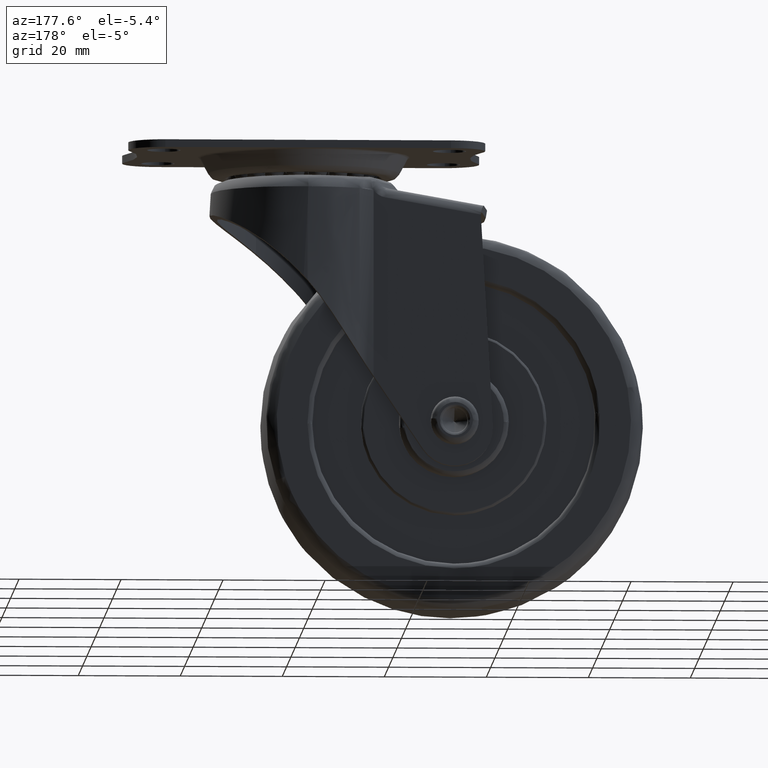
[diagram: clean part render]
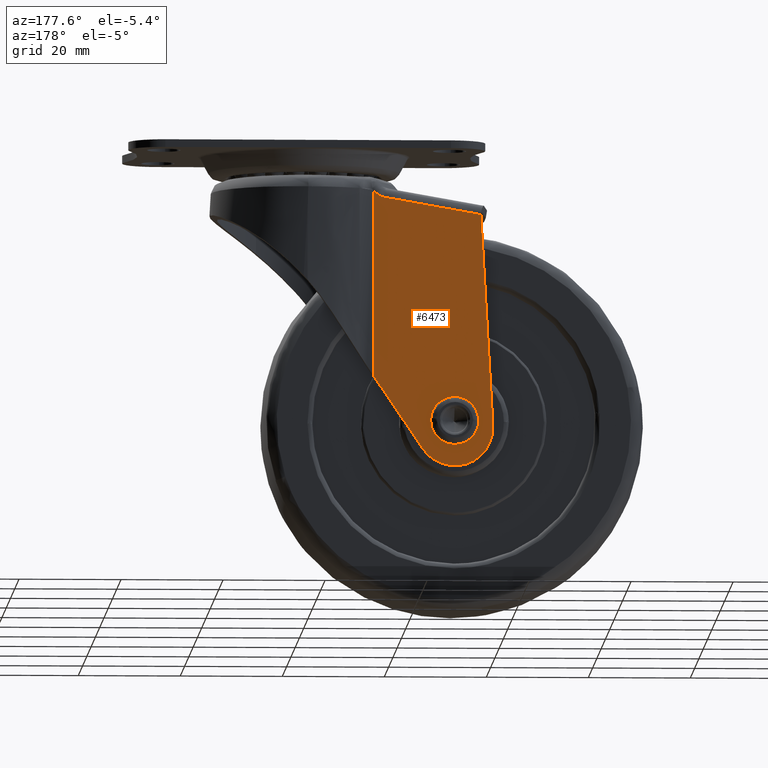
[diagram: same view with one face highlighted and labeled with its STEP entity id]
A machine part, auxiliary view. The second image highlights one B-rep face of the part: STEP entity #6473.
In plain terms, the highlighted face is a freeform B-spline surface patch.
Its self-contained STEP definition (entity closure, byte-faithful):
#774=CARTESIAN_POINT('',(-32.243938094868049,14.500014999999980,-52.801588246462401));
#775=VERTEX_POINT('',#774);
#781=CARTESIAN_POINT('',(-29.0,14.500014999999980,-49.749996000000003));
#782=VERTEX_POINT('',#781);
#783=CARTESIAN_POINT('',(-29.0,14.500014999999980,-49.749996000000003));
#784=CARTESIAN_POINT('',(-32.057294717350388,14.500014999999976,-49.749995999999996));
#785=CARTESIAN_POINT('',(-32.243938094868049,14.500014999999982,-52.801588246462408));
#793=(BOUNDED_CURVE()B_SPLINE_CURVE(2,(#783,#784,#785),.UNSPECIFIED.,.F.,.U.)B_SPLINE_CURVE_WITH_KNOTS((3,3),(0.500000000000000,0.739332962236722),.UNSPECIFIED.)CURVE()GEOMETRIC_REPRESENTATION_ITEM()RATIONAL_B_SPLINE_CURVE((1.0,0.719603993289312,0.976072041661959))REPRESENTATION_ITEM(''));
#794=EDGE_CURVE('',#782,#775,#793,.T.);
#796=CARTESIAN_POINT('',(-25.772719039358218,14.500014999999980,-53.383607262972063));
#797=VERTEX_POINT('',#796);
#798=CARTESIAN_POINT('',(-25.772719039358211,14.500014999999985,-53.383607262972056));
#799=CARTESIAN_POINT('',(-25.750000000000004,14.500014999999983,-53.192474389209877));
#800=CARTESIAN_POINT('',(-25.750000000000000,14.500014999999980,-52.999996000000003));
#801=CARTESIAN_POINT('',(-25.750000000000004,14.500014999999978,-49.749996000000003));
#802=CARTESIAN_POINT('',(-29.0,14.500014999999980,-49.749996000000003));
#810=(BOUNDED_CURVE()B_SPLINE_CURVE(2,(#798,#799,#800,#801,#802),.UNSPECIFIED.,.F.,.U.)B_SPLINE_CURVE_WITH_KNOTS((3,2,3),(0.229562473480287,0.250000000000000,0.500000000000000),.UNSPECIFIED.)CURVE()GEOMETRIC_REPRESENTATION_ITEM()RATIONAL_B_SPLINE_CURVE((0.956026754118584,0.976055948292224,1.0,0.707106781186547,1.0))REPRESENTATION_ITEM(''));
#811=EDGE_CURVE('',#797,#782,#810,.T.);
#855=CARTESIAN_POINT('',(-29.0,14.500014999999980,-56.249996000000003));
#856=VERTEX_POINT('',#855);
#857=CARTESIAN_POINT('',(-29.0,14.500014999999980,-56.249996000000003));
#858=CARTESIAN_POINT('',(-26.113432791266213,14.500014999999976,-56.249996000000003));
#859=CARTESIAN_POINT('',(-25.772719039358211,14.500014999999980,-53.383607262972063));
#867=(BOUNDED_CURVE()B_SPLINE_CURVE(2,(#857,#858,#859),.UNSPECIFIED.,.F.,.U.)B_SPLINE_CURVE_WITH_KNOTS((3,3),(0.0,0.229562473480287),.UNSPECIFIED.)CURVE()GEOMETRIC_REPRESENTATION_ITEM()RATIONAL_B_SPLINE_CURVE((1.0,0.731050832894324,0.956026754118584))REPRESENTATION_ITEM(''));
#868=EDGE_CURVE('',#856,#797,#867,.T.);
#870=CARTESIAN_POINT('',(-32.243938094868042,14.500014999999982,-52.801588246462394));
#871=CARTESIAN_POINT('',(-32.250000000000007,14.500014999999980,-52.900699519230145));
#872=CARTESIAN_POINT('',(-32.250000000000000,14.500014999999980,-52.999996000000003));
#873=CARTESIAN_POINT('',(-32.250000000000007,14.500014999999978,-56.249996000000003));
#874=CARTESIAN_POINT('',(-29.0,14.500014999999980,-56.249996000000003));
#882=(BOUNDED_CURVE()B_SPLINE_CURVE(2,(#870,#871,#872,#873,#874),.UNSPECIFIED.,.F.,.U.)B_SPLINE_CURVE_WITH_KNOTS((3,2,3),(0.739332962236722,0.750000000000000,1.0),.UNSPECIFIED.)CURVE()GEOMETRIC_REPRESENTATION_ITEM()RATIONAL_B_SPLINE_CURVE((0.976072041661957,0.987502787897235,1.0,0.707106781186547,1.0))REPRESENTATION_ITEM(''));
#883=EDGE_CURVE('',#775,#856,#882,.T.);
#3153=CARTESIAN_POINT('',(-15.430853381410500,14.500014999999960,-9.154299151715140));
#3154=VERTEX_POINT('',#3153);
#3183=CARTESIAN_POINT('',(-13.424236345553700,14.500014999999960,-8.099379601999029));
#3184=VERTEX_POINT('',#3183);
#3198=CARTESIAN_POINT('',(-15.430853381410500,14.500014999999960,-9.154299151715140));
#3199=CARTESIAN_POINT('',(-15.240095657702740,14.500014999999960,-9.120663435797777));
#3200=CARTESIAN_POINT('',(-15.054419396493479,14.500014999999960,-9.072819477176346));
#3201=CARTESIAN_POINT('',(-14.692659832718929,14.500014999999960,-8.950308753565594));
#3202=CARTESIAN_POINT('',(-14.516575271179381,14.500014999999960,-8.875645508785615));
#3203=CARTESIAN_POINT('',(-14.260009214604180,14.500014999999960,-8.742509980088491));
#3204=CARTESIAN_POINT('',(-14.175574023084200,14.500014999999960,-8.694436260273777));
#3205=CARTESIAN_POINT('',(-14.012084351960731,14.500014999999960,-8.592487141603245));
#3206=CARTESIAN_POINT('',(-13.932702410238081,14.500014999999960,-8.538463438082134));
#3207=CARTESIAN_POINT('',(-13.701819226378721,14.500014999999960,-8.367020412389342));
#3208=CARTESIAN_POINT('',(-13.557470925140960,14.500014999999960,-8.240370735559774));
#3209=CARTESIAN_POINT('',(-13.424236345553700,14.500014999999960,-8.099379601999029));
#3210=B_SPLINE_CURVE_WITH_KNOTS('',3,(#3198,#3199,#3200,#3201,#3202,#3203,#3204,#3205,#3206,#3207,#3208,#3209),.UNSPECIFIED.,.F.,.U.,(4,2,2,2,2,4),(0.0,0.249999999999999,0.499999999999998,0.624999999999998,0.749999999999998,1.0),.UNSPECIFIED.);
#3211=EDGE_CURVE('',#3154,#3184,#3210,.T.);
#3238=CARTESIAN_POINT('',(-13.114845407450700,14.500014999999960,-7.772795096158620));
#3239=VERTEX_POINT('',#3238);
#3253=CARTESIAN_POINT('',(-13.424236345553700,14.500014999999960,-8.099379601999029));
#3254=CARTESIAN_POINT('',(-13.321242122598839,14.500014999999960,-7.990389336186687));
#3255=CARTESIAN_POINT('',(-13.218113573278680,14.500014999999960,-7.881525836662141));
#3256=CARTESIAN_POINT('',(-13.114845407450700,14.500014999999960,-7.772795096158620));
#3257=B_SPLINE_CURVE_WITH_KNOTS('',3,(#3253,#3254,#3255,#3256),.UNSPECIFIED.,.F.,.U.,(4,4),(0.0,0.000449866860343),.UNSPECIFIED.);
#3258=EDGE_CURVE('',#3184,#3239,#3257,.T.);
#3333=CARTESIAN_POINT('',(-34.129131500886899,14.500014999999960,-12.451308823470800));
#3334=VERTEX_POINT('',#3333);
#3335=CARTESIAN_POINT('',(-34.129131500886899,14.500014999999960,-12.451308823470800));
#3336=CARTESIAN_POINT('',(-32.816054485964827,14.500014999999960,-12.219777981764789));
#3337=CARTESIAN_POINT('',(-31.502977470398800,14.500014999999960,-11.988247143710860));
#3338=CARTESIAN_POINT('',(-30.189900454069448,14.500014999999960,-11.756716309985960));
#3339=CARTESIAN_POINT('',(-25.270218110247310,14.500014999999960,-10.889243846024190));
#3340=CARTESIAN_POINT('',(-20.350535756493819,14.500014999999960,-10.021771438385869));
#3341=CARTESIAN_POINT('',(-15.430853381410500,14.500014999999960,-9.154299151715140));
#3342=B_SPLINE_CURVE_WITH_KNOTS('',3,(#3335,#3336,#3337,#3338,#3339,#3340,#3341),.UNSPECIFIED.,.F.,.U.,(4,3,4),(0.0,0.004000000000000,0.018986728981290),.UNSPECIFIED.);
#3343=EDGE_CURVE('',#3334,#3154,#3342,.T.);
#5764=CARTESIAN_POINT('',(-13.114845407450719,14.500014999999960,-44.296311268180702));
#5765=VERTEX_POINT('',#5764);
#5766=CARTESIAN_POINT('',(-13.114845407450700,14.500014999999960,-7.772795096158620));
#5767=CARTESIAN_POINT('',(-13.114845407450719,14.500014999999960,-44.296311268180702));
#5768=QUASI_UNIFORM_CURVE('',1,(#5766,#5767),.UNSPECIFIED.,.F.,.U.);
#5769=EDGE_CURVE('',#3239,#5765,#5768,.T.);
#6427=CARTESIAN_POINT('',(-37.664535874758492,14.500014999999960,-5.069228271435737));
#6428=CARTESIAN_POINT('',(-37.664535874758492,14.500014999999960,-64.601827428344095));
#6429=CARTESIAN_POINT('',(-11.946925361953500,14.500014999999960,-5.069228271435737));
#6430=CARTESIAN_POINT('',(-11.946925361953500,14.500014999999960,-64.601827428344095));
#6431=B_SPLINE_SURFACE_WITH_KNOTS('',1,1,((#6427,#6429),(#6428,#6430)),.UNSPECIFIED.,.F.,.F.,.U.,(2,2),(2,2),(0.0,59.532599156908361),(0.0,25.717610512804988),.UNSPECIFIED.);
#6432=ORIENTED_EDGE('',*,*,#3211,.T.);
#6433=ORIENTED_EDGE('',*,*,#3258,.T.);
#6434=ORIENTED_EDGE('',*,*,#5769,.T.);
#6435=CARTESIAN_POINT('',(-22.786950000000001,14.500014999999980,-58.600955999999897));
#6436=VERTEX_POINT('',#6435);
#6437=CARTESIAN_POINT('',(-13.114845407450719,14.500014999999960,-44.296311268180702));
#6438=CARTESIAN_POINT('',(-22.786950000000001,14.500014999999980,-58.600955999999897));
#6439=QUASI_UNIFORM_CURVE('',1,(#6437,#6438),.UNSPECIFIED.,.F.,.U.);
#6440=EDGE_CURVE('',#5765,#6436,#6439,.T.);
#6441=ORIENTED_EDGE('',*,*,#6440,.T.);
#6442=CARTESIAN_POINT('',(-36.487928251062449,14.500014999999980,-53.974638731920713));
#6443=VERTEX_POINT('',#6442);
#6444=CARTESIAN_POINT('',(-36.487928251062449,14.500014999999980,-53.974638731920713));
#6445=CARTESIAN_POINT('',(-36.811925746370399,14.500014999999985,-59.678221354880691));
#6446=CARTESIAN_POINT('',(-31.399380013208859,14.500014999999980,-61.505839305274257));
#6447=CARTESIAN_POINT('',(-25.986834280047333,14.500014999999985,-63.333457255667838));
#6448=CARTESIAN_POINT('',(-22.786950000000001,14.500014999999980,-58.600955999999897));
#6456=(BOUNDED_CURVE()B_SPLINE_CURVE(2,(#6444,#6445,#6446,#6447,#6448),.UNSPECIFIED.,.F.,.U.)B_SPLINE_CURVE_WITH_KNOTS((3,2,3),(0.0,0.500000000000000,1.0),.UNSPECIFIED.)CURVE()GEOMETRIC_REPRESENTATION_ITEM()RATIONAL_B_SPLINE_CURVE((1.0,0.795508827681783,1.0,0.795508827681783,1.0))REPRESENTATION_ITEM(''));
#6457=EDGE_CURVE('',#6443,#6436,#6456,.T.);
#6458=ORIENTED_EDGE('',*,*,#6457,.F.);
#6459=CARTESIAN_POINT('',(-36.487928251062449,14.500014999999980,-53.974638731920713));
#6460=CARTESIAN_POINT('',(-34.129131500886899,14.500014999999960,-12.451308823470800));
#6461=QUASI_UNIFORM_CURVE('',1,(#6459,#6460),.UNSPECIFIED.,.F.,.U.);
#6462=EDGE_CURVE('',#6443,#3334,#6461,.T.);
#6463=ORIENTED_EDGE('',*,*,#6462,.T.);
#6464=ORIENTED_EDGE('',*,*,#3343,.T.);
#6465=EDGE_LOOP('',(#6432,#6433,#6434,#6441,#6458,#6463,#6464));
#6466=FACE_OUTER_BOUND('',#6465,.T.);
#6467=ORIENTED_EDGE('',*,*,#794,.T.);
#6468=ORIENTED_EDGE('',*,*,#883,.T.);
#6469=ORIENTED_EDGE('',*,*,#868,.T.);
#6470=ORIENTED_EDGE('',*,*,#811,.T.);
#6471=EDGE_LOOP('',(#6467,#6468,#6469,#6470));
#6472=FACE_BOUND('',#6471,.T.);
#6473=ADVANCED_FACE('',(#6466,#6472),#6431,.F.);